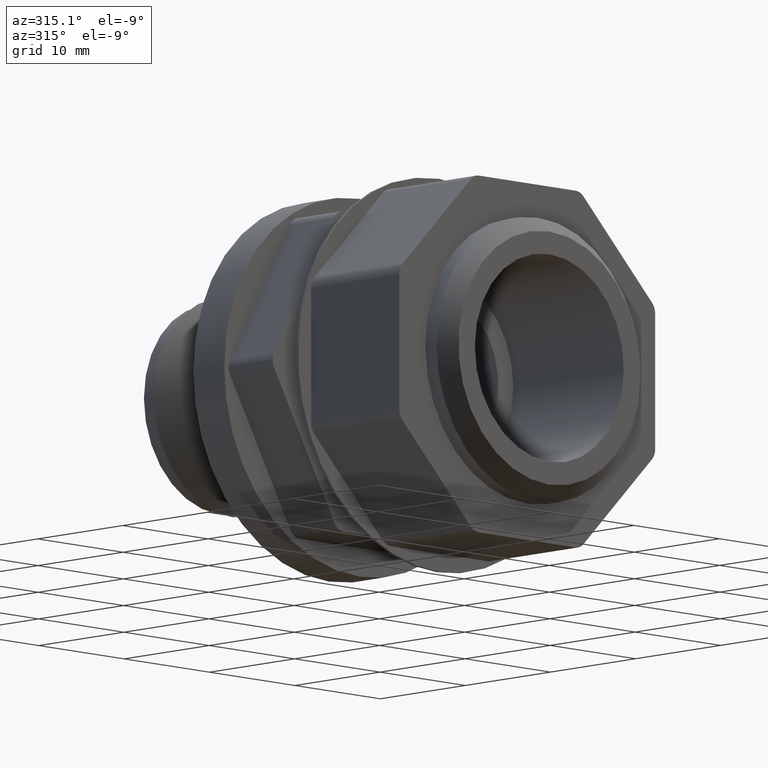
[diagram: clean part render]
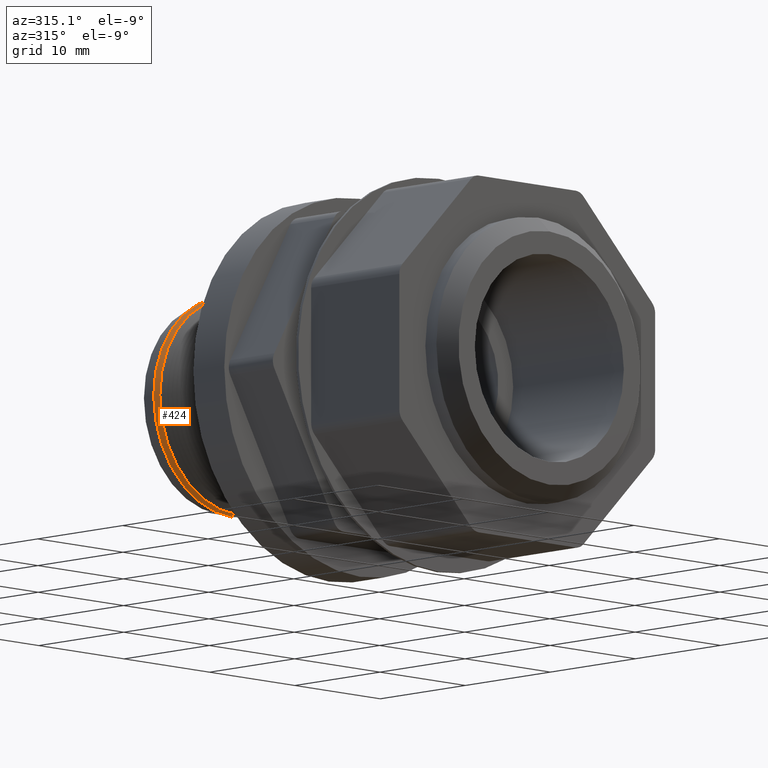
[diagram: same view with one face highlighted and labeled with its STEP entity id]
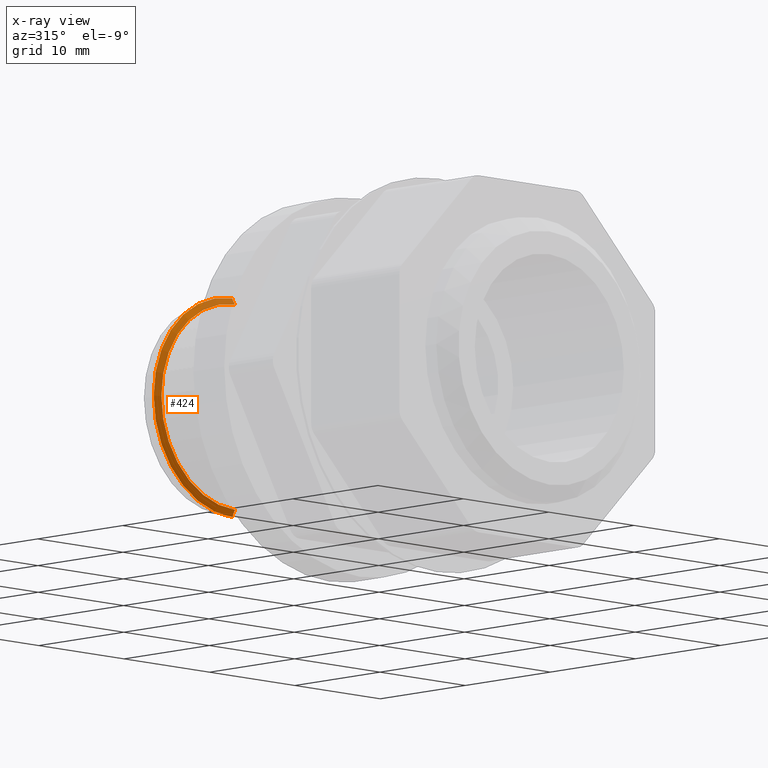
[diagram: x-ray of the same camera — body ghosted, the highlighted face saturated]
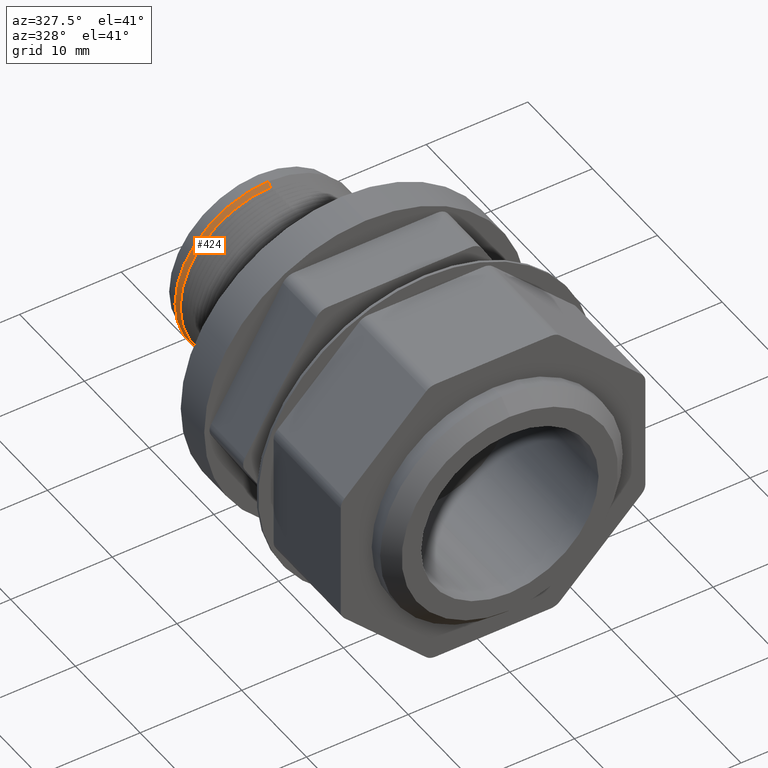
[diagram: same view with one face highlighted and labeled with its STEP entity id]
A machine part, auxiliary view. The second image highlights one B-rep face of the part: STEP entity #424.
The next image is the same camera in x-ray: the body ghosted, the highlighted face saturated — about 10% of this face is hidden behind the body in this view.
A second angle (auxiliary view) of the same face is appended — the face is thin or edge-on in the first view.
In plain terms, the highlighted conical surface has half-angle 59.982 deg.
Its self-contained STEP definition (entity closure, byte-faithful):
#421 = EDGE_CURVE ( 'NONE', #715, #713, #1494, .T. ) ;
#424 = ADVANCED_FACE ( 'NONE', ( #1495 ), #1487, .T. ) ;
#425 = EDGE_LOOP ( 'NONE', ( #426, #427, #428, #429 ) ) ;
#426 = ORIENTED_EDGE ( 'NONE', *, *, #708, .F. ) ;
#427 = ORIENTED_EDGE ( 'NONE', *, *, #421, .T. ) ;
#428 = ORIENTED_EDGE ( 'NONE', *, *, #707, .T. ) ;
#429 = ORIENTED_EDGE ( 'NONE', *, *, #4149, .T. ) ;
#704 = VERTEX_POINT ( 'NONE', #1960 ) ;
#706 = VERTEX_POINT ( 'NONE', #1959 ) ;
#707 = EDGE_CURVE ( 'NONE', #713, #706, #1958, .T. ) ;
#708 = EDGE_CURVE ( 'NONE', #715, #704, #2015, .T. ) ;
#713 = VERTEX_POINT ( 'NONE', #2000 ) ;
#715 = VERTEX_POINT ( 'NONE', #1999 ) ;
#1484 = DIRECTION ( 'NONE',  ( 0.0000000000000000000, 0.0000000000000000000, 1.000000000000000000 ) ) ;
#1485 = DIRECTION ( 'NONE',  ( -0.0000000000000000000, 1.000000000000000000, -0.0000000000000000000 ) ) ;
#1486 = AXIS2_PLACEMENT_3D ( 'NONE', #1488, #1485, #1484 ) ;
#1487 = CONICAL_SURFACE ( 'NONE', #1486, 0.3390145267796636500, 1.046883391931237300 ) ;
#1488 = CARTESIAN_POINT ( 'NONE',  ( 0.0000000000000000000, 1.454991837162775000, 0.0000000000000000000 ) ) ;
#1489 = DIRECTION ( 'NONE',  ( 0.0000000000000000000, 0.0000000000000000000, 1.000000000000000000 ) ) ;
#1490 = DIRECTION ( 'NONE',  ( -0.0000000000000000000, 1.000000000000000000, -0.0000000000000000000 ) ) ;
#1492 = CARTESIAN_POINT ( 'NONE',  ( 0.0000000000000000000, 1.454991837162775000, 0.0000000000000000000 ) ) ;
#1493 = AXIS2_PLACEMENT_3D ( 'NONE', #1492, #1490, #1489 ) ;
#1494 = CIRCLE ( 'NONE', #1493, 0.3390145267796636500 ) ;
#1495 = FACE_OUTER_BOUND ( 'NONE', #425, .T. ) ;
#1955 = DIRECTION ( 'NONE',  ( 0.0000000000000000000, 0.5002720452261503200, 0.8658682814177020000 ) ) ;
#1956 = VECTOR ( 'NONE', #1955, 39.37007874015748100 ) ;
#1957 = CARTESIAN_POINT ( 'NONE',  ( 0.0000000000000000000, 1.454991837162775000, 0.3390145267796636500 ) ) ;
#1958 = LINE ( 'NONE', #1957, #1956 ) ;
#1959 = CARTESIAN_POINT ( 'NONE',  ( 0.0000000000000000000, 1.468000000000000200, 0.3615289880767728600 ) ) ;
#1960 = CARTESIAN_POINT ( 'NONE',  ( 4.427453180472014800E-017, 1.468000000000000200, -0.3615289880767728600 ) ) ;
#1999 = CARTESIAN_POINT ( 'NONE',  ( 0.0000000000000000000, 1.454991837162775000, -0.3390145267796636500 ) ) ;
#2000 = CARTESIAN_POINT ( 'NONE',  ( 4.257788060767576300E-017, 1.454991837162775000, 0.3390145267796636500 ) ) ;
#2012 = DIRECTION ( 'NONE',  ( 1.060382819321408300E-016, 0.5002720452261503200, -0.8658682814177020000 ) ) ;
#2013 = VECTOR ( 'NONE', #2012, 39.37007874015748100 ) ;
#2014 = CARTESIAN_POINT ( 'NONE',  ( 4.151730550851697700E-017, 1.454991837162775000, -0.3390145267796636500 ) ) ;
#2015 = LINE ( 'NONE', #2014, #2013 ) ;
#3064 = DIRECTION ( 'NONE',  ( 0.0000000000000000000, 0.0000000000000000000, 1.000000000000000000 ) ) ;
#3065 = DIRECTION ( 'NONE',  ( 0.0000000000000000000, -1.000000000000000000, 0.0000000000000000000 ) ) ;
#3066 = CARTESIAN_POINT ( 'NONE',  ( 0.0000000000000000000, 1.468000000000000200, 0.0000000000000000000 ) ) ;
#3067 = AXIS2_PLACEMENT_3D ( 'NONE', #3066, #3065, #3064 ) ;
#3068 = CIRCLE ( 'NONE', #3067, 0.3615289880767728600 ) ;
#4149 = EDGE_CURVE ( 'NONE', #706, #704, #3068, .T. ) ;